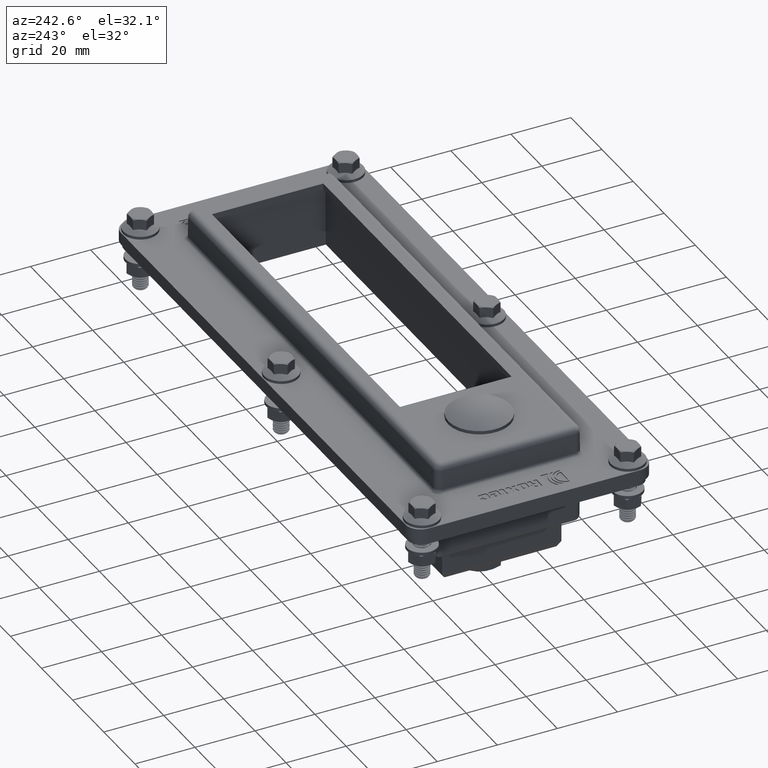
[diagram: clean part render]
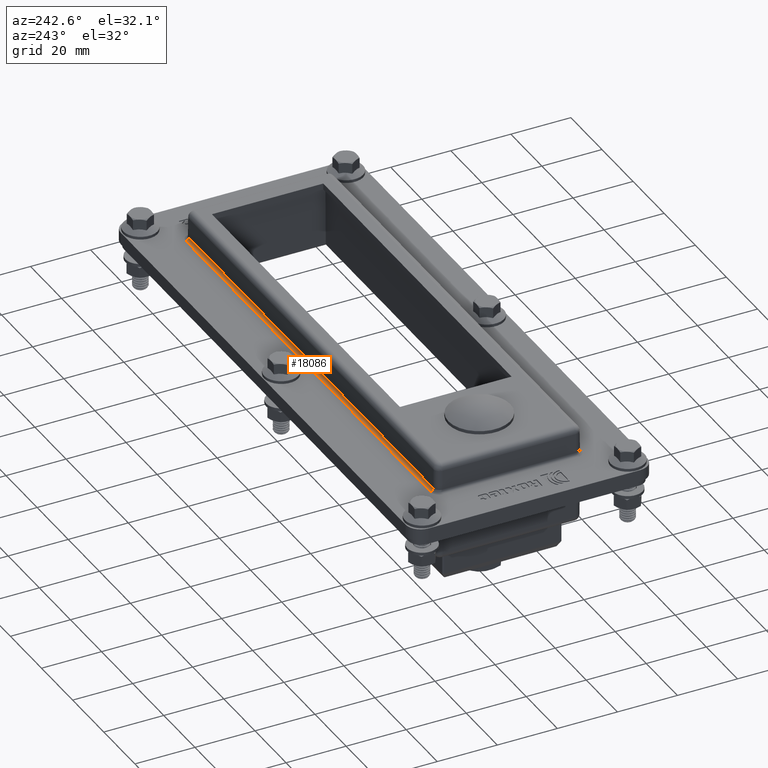
[diagram: same view with one face highlighted and labeled with its STEP entity id]
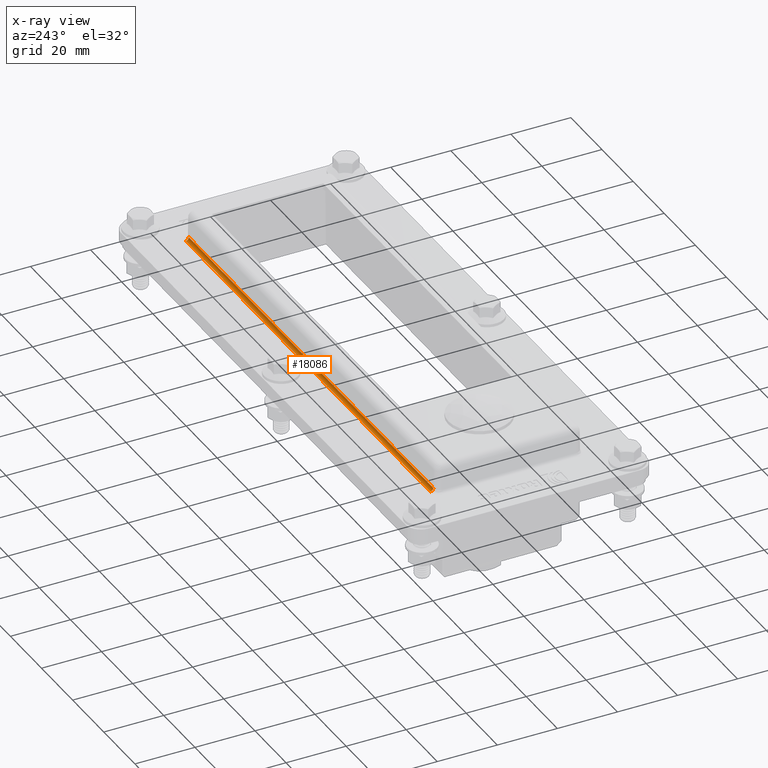
[diagram: x-ray of the same camera — body ghosted, the highlighted face saturated]
A machine part, auxiliary view. The second image highlights one B-rep face of the part: STEP entity #18086.
The next image is the same camera in x-ray: the body ghosted, the highlighted face saturated — about 0% of this face is hidden behind the body in this view.
In plain terms, the highlighted cylindrical surface (edge-blend (fillet) strip) has radius 1 mm, axis along (-1, -0, 0).
Its self-contained STEP definition (entity closure, byte-faithful):
#14390=CARTESIAN_POINT('',(-108.57433068541469,25.324216454607182,13.499999999999998));
#14391=VERTEX_POINT('',#14390);
#14399=CARTESIAN_POINT('',(48.574330685414694,25.324216454607196,13.499999999999998));
#14400=VERTEX_POINT('',#14399);
#14401=CARTESIAN_POINT('',(48.574330685414694,25.324216454607193,13.499999999999998));
#14402=DIRECTION('',(-1.0,0.0,0.0));
#14403=VECTOR('',#14402,157.14866137082939);
#14404=LINE('',#14401,#14403);
#14405=EDGE_CURVE('',#14400,#14391,#14404,.T.);
#17366=CARTESIAN_POINT('',(-108.57433068541469,24.324254531543005,14.491273464501626));
#17367=VERTEX_POINT('',#17366);
#17398=CARTESIAN_POINT('',(48.574330685414694,24.324254531543026,14.491273464501621));
#17399=VERTEX_POINT('',#17398);
#17406=CARTESIAN_POINT('',(-108.57433068541469,24.324254531543009,14.491273464501628));
#17407=DIRECTION('',(1.0,0.0,0.0));
#17408=VECTOR('',#17407,157.14866137082939);
#17409=LINE('',#17406,#17408);
#17410=EDGE_CURVE('',#17367,#17399,#17409,.T.);
#18023=CARTESIAN_POINT('',(-108.57433068541469,25.324216454607182,14.5));
#18024=DIRECTION('',(1.0,0.0,0.0));
#18025=DIRECTION('',(0.0,-0.999961923064171,-0.008726535498373));
#18026=AXIS2_PLACEMENT_3D('',#18023,#18024,#18025);
#18027=CIRCLE('',#18026,1.000000000000003);
#18028=EDGE_CURVE('',#17367,#14391,#18027,.T.);
#18062=CARTESIAN_POINT('',(48.574330685414694,25.324216454607196,14.5));
#18063=DIRECTION('',(-1.0,0.0,0.0));
#18064=DIRECTION('',(0.0,0.0,-1.0));
#18065=AXIS2_PLACEMENT_3D('',#18062,#18063,#18064);
#18066=CIRCLE('',#18065,1.000000000000001);
#18067=EDGE_CURVE('',#14400,#17399,#18066,.T.);
#18075=CARTESIAN_POINT('',(-70.249999999999986,25.324216454607175,14.500000000000002));
#18076=DIRECTION('',(-1.0,-1.379159E-016,1.074707E-032));
#18077=DIRECTION('',(0.0,-0.704014724455964,-0.71018537562329));
#18078=AXIS2_PLACEMENT_3D('',#18075,#18076,#18077);
#18079=CYLINDRICAL_SURFACE('',#18078,1.0);
#18080=ORIENTED_EDGE('',*,*,#18028,.F.);
#18081=ORIENTED_EDGE('',*,*,#17410,.T.);
#18082=ORIENTED_EDGE('',*,*,#18067,.F.);
#18083=ORIENTED_EDGE('',*,*,#14405,.T.);
#18084=EDGE_LOOP('',(#18080,#18081,#18082,#18083));
#18085=FACE_OUTER_BOUND('',#18084,.T.);
#18086=ADVANCED_FACE('',(#18085),#18079,.F.);